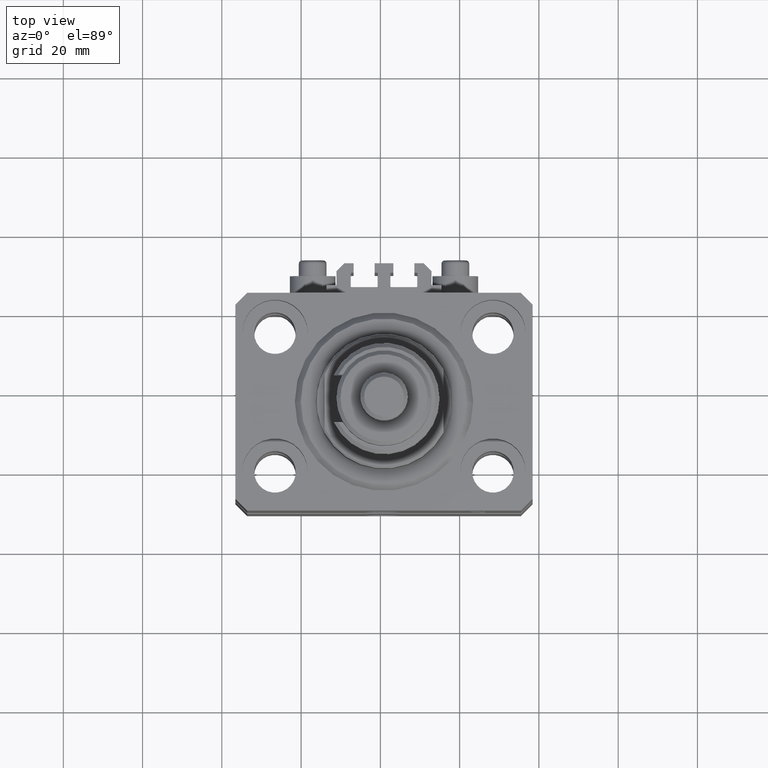
[diagram: clean part render]
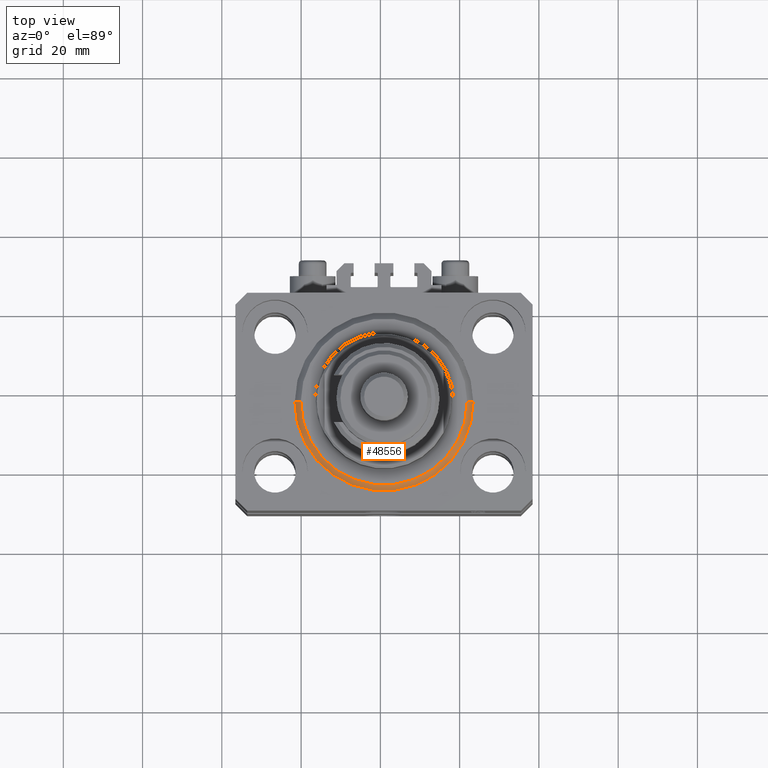
[diagram: same view with one face highlighted and labeled with its STEP entity id]
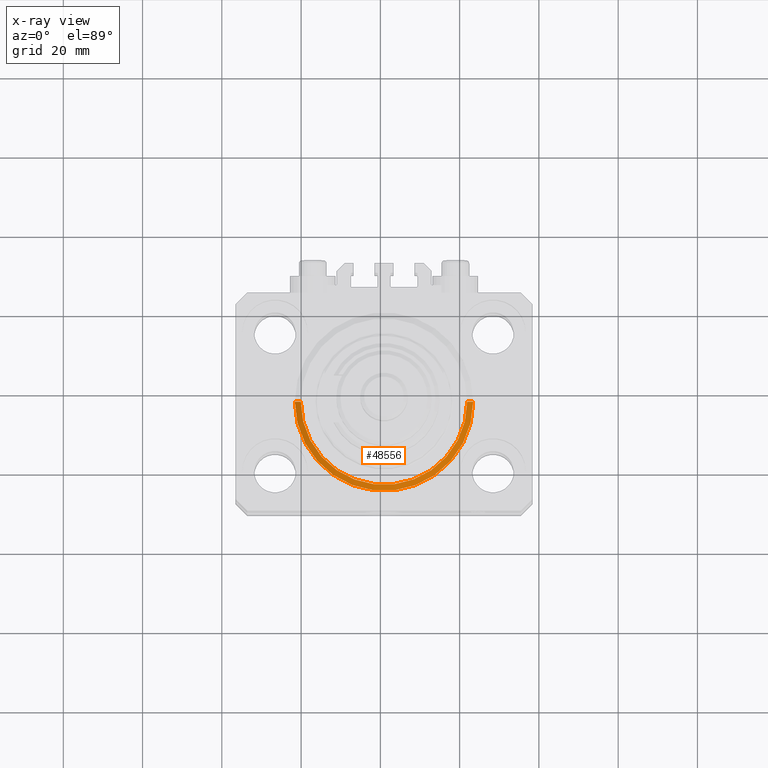
[diagram: x-ray of the same camera — body ghosted, the highlighted face saturated]
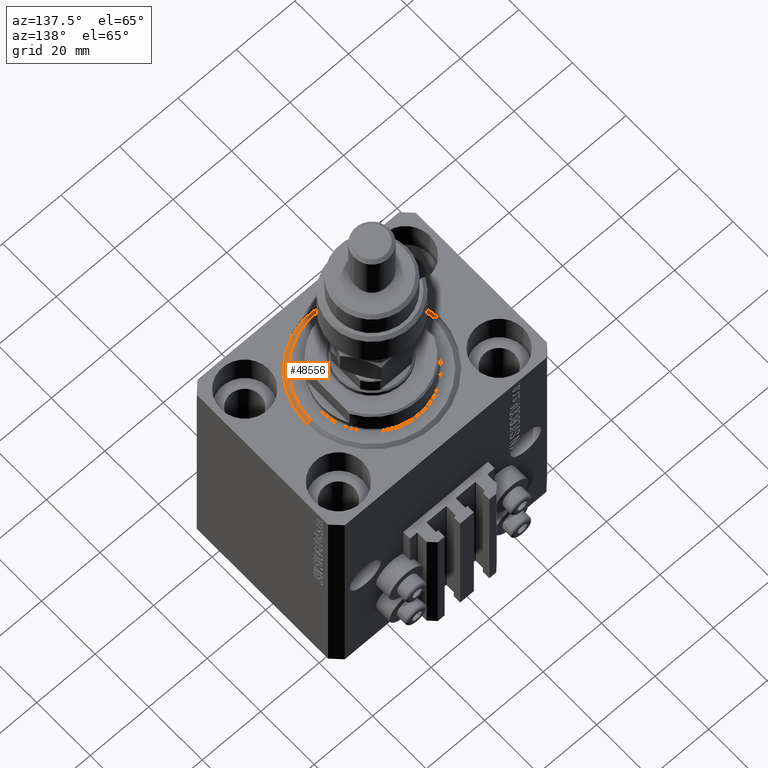
[diagram: same view with one face highlighted and labeled with its STEP entity id]
A machine part, top view. The second image highlights one B-rep face of the part: STEP entity #48556.
The next image is the same camera in x-ray: the body ghosted, the highlighted face saturated — about 0% of this face is hidden behind the body in this view.
A second angle (auxiliary view) of the same face is appended — the face is thin or edge-on in the first view.
In plain terms, the highlighted conical surface has half-angle 45 deg.
Its self-contained STEP definition (entity closure, byte-faithful):
#1839 = CARTESIAN_POINT ( 'NONE',  ( -20.99999999999998934, 2.663606788145492628E-15, 0.000000000000000000 ) ) ;
#1967 = FACE_OUTER_BOUND ( 'NONE', #30739, .T. ) ;
#2447 = DIRECTION ( 'NONE',  ( 1.000000000000000000, 0.000000000000000000, 0.000000000000000000 ) ) ;
#3662 = CONICAL_SURFACE ( 'NONE', #14055, 22.50000000000000355, 0.7853981633974517207 ) ;
#3915 = DIRECTION ( 'NONE',  ( 0.7071067811865500152, 0.000000000000000000, 0.7071067811865451302 ) ) ;
#5219 = DIRECTION ( 'NONE',  ( -0.7071067811865500152, 8.659560562354963673E-17, 0.7071067811865451302 ) ) ;
#6221 = AXIS2_PLACEMENT_3D ( 'NONE', #27694, #16631, #38494 ) ;
#6505 = VERTEX_POINT ( 'NONE', #46984 ) ;
#9090 = ORIENTED_EDGE ( 'NONE', *, *, #15311, .F. ) ;
#9481 = EDGE_CURVE ( 'NONE', #6505, #18878, #41564, .T. ) ;
#9530 = CARTESIAN_POINT ( 'NONE',  ( 0.000000000000000000, 0.000000000000000000, 0.000000000000000000 ) ) ;
#13195 = VERTEX_POINT ( 'NONE', #1839 ) ;
#14055 = AXIS2_PLACEMENT_3D ( 'NONE', #21508, #36824, #2447 ) ;
#14495 = AXIS2_PLACEMENT_3D ( 'NONE', #9530, #32624, #43451 ) ;
#15311 = EDGE_CURVE ( 'NONE', #13195, #47346, #39601, .T. ) ;
#15786 = EDGE_CURVE ( 'NONE', #47346, #18878, #40683, .T. ) ;
#16631 = DIRECTION ( 'NONE',  ( -0.000000000000000000, -0.000000000000000000, 1.000000000000000000 ) ) ;
#16742 = CARTESIAN_POINT ( 'NONE',  ( -22.50000000000000355, 2.755455298081545172E-15, 1.500000000000001332 ) ) ;
#17103 = CARTESIAN_POINT ( 'NONE',  ( -22.50000000000000355, 0.000000000000000000, 1.500000000000001332 ) ) ;
#18878 = VERTEX_POINT ( 'NONE', #33208 ) ;
#18933 = VECTOR ( 'NONE', #3915, 1000.000000000000114 ) ;
#21508 = CARTESIAN_POINT ( 'NONE',  ( 0.000000000000000000, 0.000000000000000000, 1.500000000000001332 ) ) ;
#24443 = EDGE_CURVE ( 'NONE', #6505, #13195, #44985, .T. ) ;
#27694 = CARTESIAN_POINT ( 'NONE',  ( 0.000000000000000000, 0.000000000000000000, 1.500000000000001332 ) ) ;
#29552 = ORIENTED_EDGE ( 'NONE', *, *, #15786, .F. ) ;
#30739 = EDGE_LOOP ( 'NONE', ( #9090, #44085, #42480, #29552 ) ) ;
#31090 = VECTOR ( 'NONE', #5219, 1000.000000000000114 ) ;
#32624 = DIRECTION ( 'NONE',  ( -0.000000000000000000, -0.000000000000000000, -1.000000000000000000 ) ) ;
#33208 = CARTESIAN_POINT ( 'NONE',  ( 22.50000000000000355, 2.755455298081545172E-15, 1.500000000000001332 ) ) ;
#36824 = DIRECTION ( 'NONE',  ( -0.000000000000000000, -0.000000000000000000, 1.000000000000000000 ) ) ;
#38295 = CARTESIAN_POINT ( 'NONE',  ( 22.50000000000000355, 0.000000000000000000, 1.500000000000001332 ) ) ;
#38494 = DIRECTION ( 'NONE',  ( 1.000000000000000000, 0.000000000000000000, 0.000000000000000000 ) ) ;
#39601 = LINE ( 'NONE', #16742, #31090 ) ;
#40683 = CIRCLE ( 'NONE', #6221, 22.50000000000000355 ) ;
#41564 = LINE ( 'NONE', #38295, #18933 ) ;
#42480 = ORIENTED_EDGE ( 'NONE', *, *, #9481, .T. ) ;
#43451 = DIRECTION ( 'NONE',  ( 1.000000000000000000, 0.000000000000000000, 0.000000000000000000 ) ) ;
#44085 = ORIENTED_EDGE ( 'NONE', *, *, #24443, .F. ) ;
#44985 = CIRCLE ( 'NONE', #14495, 20.99999999999998934 ) ;
#46984 = CARTESIAN_POINT ( 'NONE',  ( 20.99999999999998934, 0.000000000000000000, 0.000000000000000000 ) ) ;
#47346 = VERTEX_POINT ( 'NONE', #17103 ) ;
#48556 = ADVANCED_FACE ( 'NONE', ( #1967 ), #3662, .T. ) ;